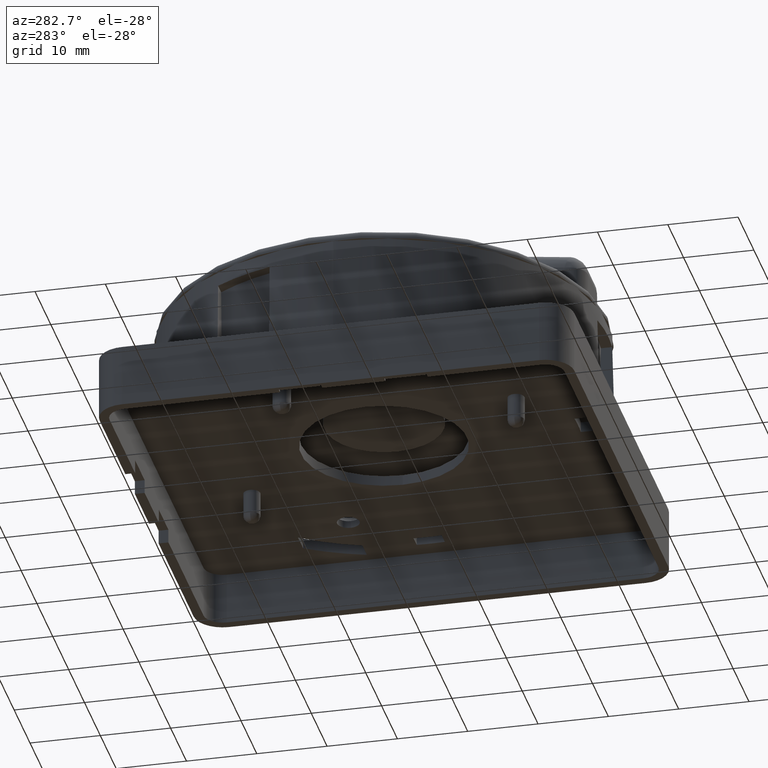
[diagram: clean part render]
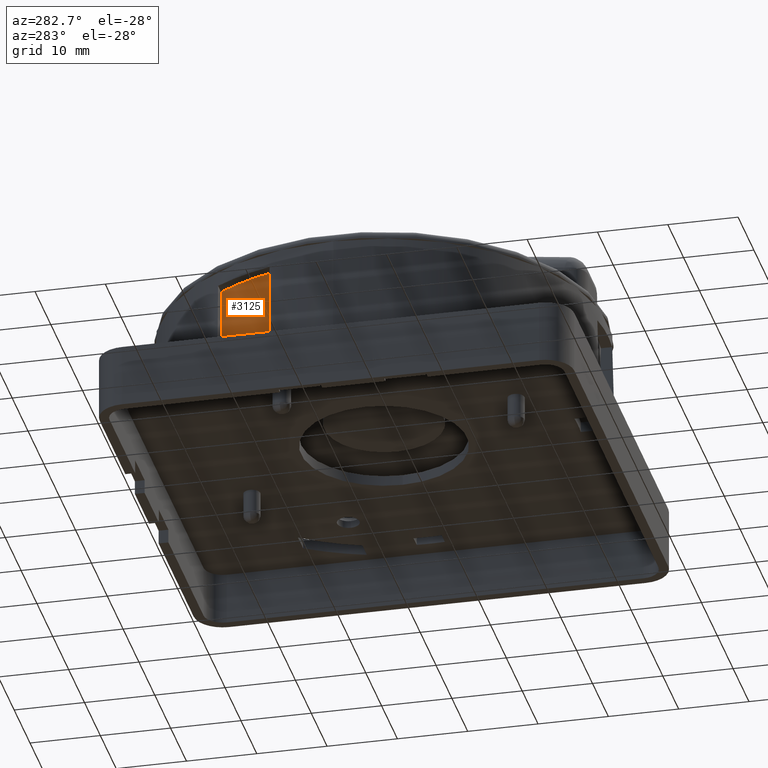
[diagram: same view with one face highlighted and labeled with its STEP entity id]
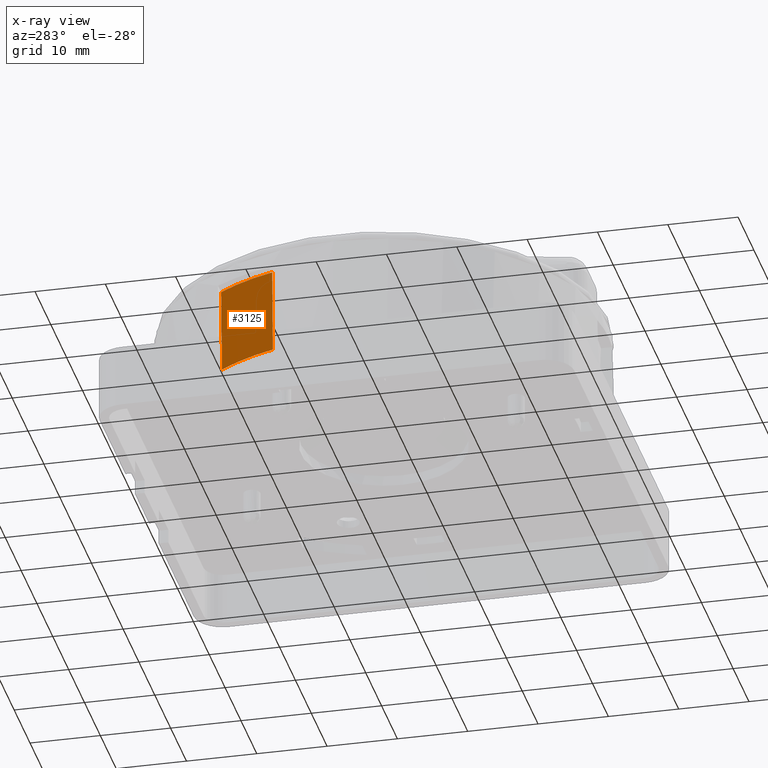
[diagram: x-ray of the same camera — body ghosted, the highlighted face saturated]
A machine part, auxiliary view. The second image highlights one B-rep face of the part: STEP entity #3125.
The next image is the same camera in x-ray: the body ghosted, the highlighted face saturated — about 0% of this face is hidden behind the body in this view.
In plain terms, the highlighted conical surface has half-angle 2 deg.
Its self-contained STEP definition (entity closure, byte-faithful):
#2280=CARTESIAN_POINT('',(82.86648341275729,125.91422556835502,70.900000000000006));
#2281=VERTEX_POINT('',#2280);
#2288=CARTESIAN_POINT('',(83.303907172871419,125.91422556835502,58.999999999999702));
#2289=VERTEX_POINT('',#2288);
#2290=CARTESIAN_POINT('',(82.86648341275729,125.91422556835502,70.900000000000006));
#2291=CARTESIAN_POINT('',(82.993614611241199,125.91422556835502,67.43886841589412));
#2292=CARTESIAN_POINT('',(83.120826557678512,125.91422556835502,63.977739796728912));
#2293=CARTESIAN_POINT('',(83.248122546321497,125.91422556835502,60.516614269476506));
#2294=CARTESIAN_POINT('',(83.266715625031622,125.91422556835502,60.011076113563313));
#2295=CARTESIAN_POINT('',(83.285310497017505,125.91422556835502,59.505538023601488));
#2296=CARTESIAN_POINT('',(83.303907172871419,125.91422556835502,58.999999999999702));
#2297=B_SPLINE_CURVE_WITH_KNOTS('',3,(#2290,#2291,#2292,#2293,#2294,#2295,#2296),.UNSPECIFIED.,.F.,.U.,(4,3,4),(0.0,0.872553310297884,1.0),.UNSPECIFIED.);
#2298=EDGE_CURVE('',#2281,#2289,#2297,.T.);
#2319=CARTESIAN_POINT('',(87.516583921727602,134.11422556835501,58.999999999999702));
#2320=VERTEX_POINT('',#2319);
#2327=CARTESIAN_POINT('',(87.004393357178884,134.11422556835501,70.900000000000006));
#2328=VERTEX_POINT('',#2327);
#2329=CARTESIAN_POINT('',(87.516583921727602,134.11422556835501,58.999999999999702));
#2330=CARTESIAN_POINT('',(87.494429617773022,134.11422556835501,59.512865976089202));
#2331=CARTESIAN_POINT('',(87.472285847212305,134.11422556835501,60.025732407297014));
#2332=CARTESIAN_POINT('',(87.450152523755406,134.11422556835501,60.538599289252517));
#2333=CARTESIAN_POINT('',(87.301100914437313,134.11422556835501,63.992379480468102));
#2334=CARTESIAN_POINT('',(87.152522919060004,134.11422556835501,67.446180140138893));
#2335=CARTESIAN_POINT('',(87.004393357178884,134.11422556835501,70.900000000000006));
#2336=B_SPLINE_CURVE_WITH_KNOTS('',3,(#2329,#2330,#2331,#2332,#2333,#2334,#2335),.UNSPECIFIED.,.F.,.U.,(4,3,4),(0.0,0.129294807784903,1.0),.UNSPECIFIED.);
#2337=EDGE_CURVE('',#2320,#2328,#2336,.T.);
#2358=CARTESIAN_POINT('',(111.68807423814602,116.51422582001801,70.900000000000006));
#2359=DIRECTION('',(0.0,0.0,-1.0));
#2360=DIRECTION('',(-1.0,0.0,0.0));
#2361=AXIS2_PLACEMENT_3D('',#2358,#2359,#2360);
#2362=CIRCLE('',#2361,30.315740020241506);
#2363=EDGE_CURVE('',#2281,#2328,#2362,.T.);
#3108=CARTESIAN_POINT('',(111.68807423814602,116.51422582001801,73.289530150989009));
#3109=DIRECTION('',(0.0,0.0,1.0));
#3110=DIRECTION('',(0.0,-1.0,0.0));
#3111=AXIS2_PLACEMENT_3D('',#3108,#3109,#3110);
#3112=CONICAL_SURFACE('',#3111,30.399184251837703,2.00000000000001);
#3113=ORIENTED_EDGE('',*,*,#2298,.F.);
#3114=ORIENTED_EDGE('',*,*,#2363,.T.);
#3115=ORIENTED_EDGE('',*,*,#2337,.F.);
#3116=CARTESIAN_POINT('',(111.68807423814602,116.51422582001801,58.999999999999702));
#3117=DIRECTION('',(0.0,0.0,1.0));
#3118=DIRECTION('',(0.0,1.0,0.0));
#3119=AXIS2_PLACEMENT_3D('',#3116,#3117,#3118);
#3120=CIRCLE('',#3119,29.900182863289704);
#3121=EDGE_CURVE('',#2320,#2289,#3120,.T.);
#3122=ORIENTED_EDGE('',*,*,#3121,.T.);
#3123=EDGE_LOOP('',(#3113,#3114,#3115,#3122));
#3124=FACE_OUTER_BOUND('',#3123,.T.);
#3125=ADVANCED_FACE('',(#3124),#3112,.T.);